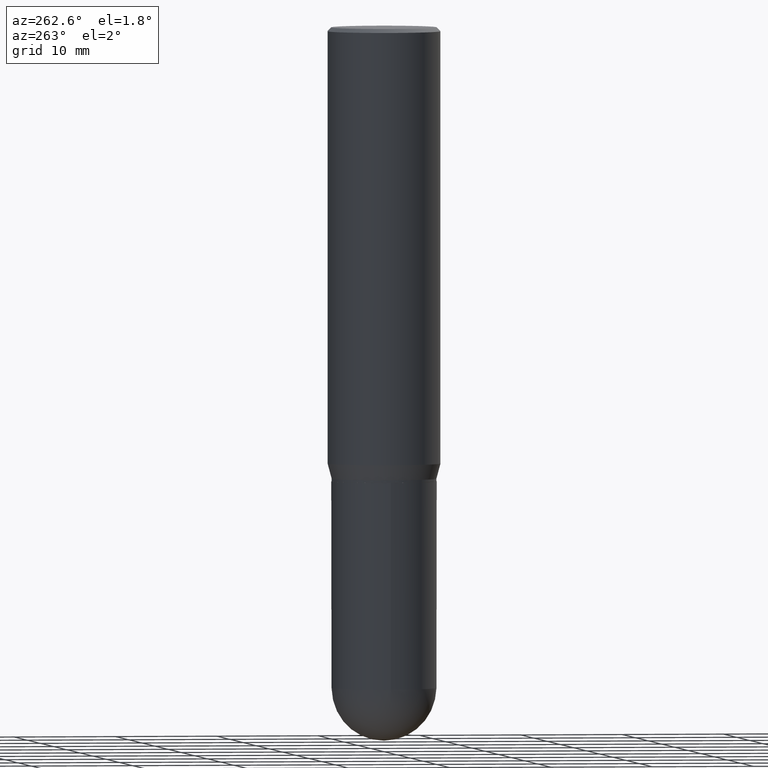
[diagram: clean part render]
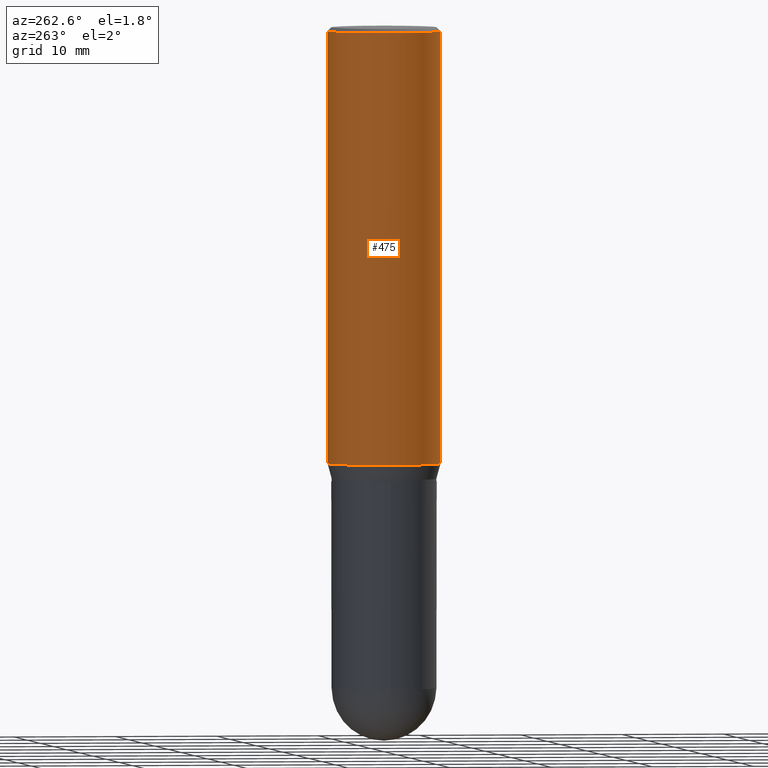
[diagram: same view with one face highlighted and labeled with its STEP entity id]
A machine part, auxiliary view. The second image highlights one B-rep face of the part: STEP entity #475.
In plain terms, the highlighted cylindrical surface (partial cylindrical patch) has radius 5.5562 mm, axis along (-0, 0, 1).
Its self-contained STEP definition (entity closure, byte-faithful):
#12 = ORIENTED_EDGE ( 'NONE', *, *, #142, .F. ) ;
#14 = DIRECTION ( 'NONE',  ( -2.445218819430257949E-29, 3.491839334104495039E-15, 1.000000000000000000 ) ) ;
#42 = ORIENTED_EDGE ( 'NONE', *, *, #314, .F. ) ;
#60 = CIRCLE ( 'NONE', #218, 0.2187500000000000000 ) ;
#63 = DIRECTION ( 'NONE',  ( -6.982962677686265133E-15, -1.000000000000000000, 3.746534391310989557E-15 ) ) ;
#71 = ORIENTED_EDGE ( 'NONE', *, *, #151, .T. ) ;
#80 = AXIS2_PLACEMENT_3D ( 'NONE', #128, #449, #420 ) ;
#83 = EDGE_CURVE ( 'NONE', #309, #271, #452, .T. ) ;
#84 = DIRECTION ( 'NONE',  ( -6.982962677686265133E-15, -1.000000000000000000, 3.491839334104495039E-15 ) ) ;
#92 = CARTESIAN_POINT ( 'NONE',  ( 4.111863840197258972E-29, -5.871853995066253491E-15, -1.681593404861546848 ) ) ;
#115 = CARTESIAN_POINT ( 'NONE',  ( 1.554312234475218762E-15, 0.2187500000000000000, -7.638398543353582897E-16 ) ) ;
#128 = CARTESIAN_POINT ( 'NONE',  ( 3.667828229145395104E-31, -5.237759001156755081E-17, -0.01500000000000003587 ) ) ;
#142 = EDGE_CURVE ( 'NONE', #446, #271, #441, .T. ) ;
#151 = EDGE_CURVE ( 'NONE', #176, #309, #60, .T. ) ;
#153 = DIRECTION ( 'NONE',  ( -2.445218819430257669E-29, 3.491839334104495039E-15, 1.000000000000000000 ) ) ;
#176 = VERTEX_POINT ( 'NONE', #305 ) ;
#218 = AXIS2_PLACEMENT_3D ( 'NONE', #92, #298, #63 ) ;
#232 = CARTESIAN_POINT ( 'NONE',  ( -1.527523085743829428E-15, -0.2187500000000058287, -1.681593404861545960 ) ) ;
#271 = VERTEX_POINT ( 'NONE', #401 ) ;
#285 = CYLINDRICAL_SURFACE ( 'NONE', #409, 0.2187500000000000000 ) ;
#298 = DIRECTION ( 'NONE',  ( -2.445218819430257669E-29, 3.491839334104495039E-15, 1.000000000000000000 ) ) ;
#305 = CARTESIAN_POINT ( 'NONE',  ( 1.554312234475260177E-15, 0.2187499999999941436, -1.681593404861547736 ) ) ;
#309 = VERTEX_POINT ( 'NONE', #232 ) ;
#314 = EDGE_CURVE ( 'NONE', #176, #446, #402, .T. ) ;
#333 = CARTESIAN_POINT ( 'NONE',  ( -1.527523085743870449E-15, -0.2187500000000000000, 7.638398543353582897E-16 ) ) ;
#359 = CARTESIAN_POINT ( 'NONE',  ( 0.000000000000000000, 0.000000000000000000, 0.000000000000000000 ) ) ;
#362 = CARTESIAN_POINT ( 'NONE',  ( 1.554312234475260375E-15, 0.2187499999999999167, -0.01500000000000080089 ) ) ;
#396 = EDGE_LOOP ( 'NONE', ( #42, #71, #440, #12 ) ) ;
#400 = DIRECTION ( 'NONE',  ( -2.445218819430257949E-29, 3.491839334104495039E-15, 1.000000000000000000 ) ) ;
#401 = CARTESIAN_POINT ( 'NONE',  ( -1.527523085743870054E-15, -0.2187500000000000555, -0.01499999999999927260 ) ) ;
#402 = LINE ( 'NONE', #115, #404 ) ;
#403 = VECTOR ( 'NONE', #14, 39.37007874015748143 ) ;
#404 = VECTOR ( 'NONE', #400, 39.37007874015748143 ) ;
#409 = AXIS2_PLACEMENT_3D ( 'NONE', #359, #153, #84 ) ;
#420 = DIRECTION ( 'NONE',  ( -6.982962677686265133E-15, -1.000000000000000000, 3.492862791899308071E-15 ) ) ;
#440 = ORIENTED_EDGE ( 'NONE', *, *, #83, .T. ) ;
#441 = CIRCLE ( 'NONE', #80, 0.2187500000000000000 ) ;
#446 = VERTEX_POINT ( 'NONE', #362 ) ;
#449 = DIRECTION ( 'NONE',  ( -2.445218819430257669E-29, 3.491839334104495039E-15, 1.000000000000000000 ) ) ;
#452 = LINE ( 'NONE', #333, #403 ) ;
#475 = ADVANCED_FACE ( 'NONE', ( #510 ), #285, .T. ) ;
#510 = FACE_OUTER_BOUND ( 'NONE', #396, .T. ) ;